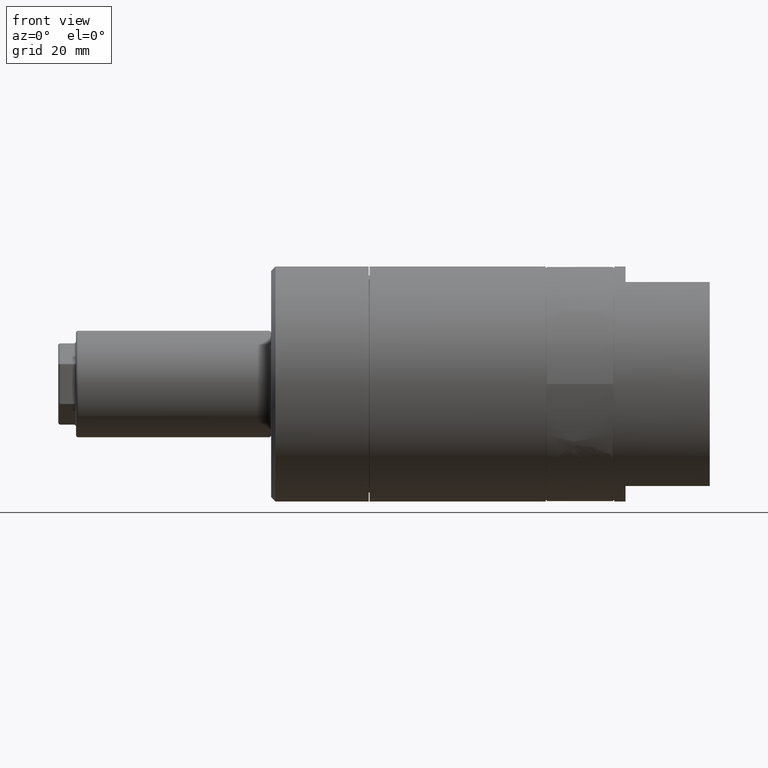
[diagram: clean part render]
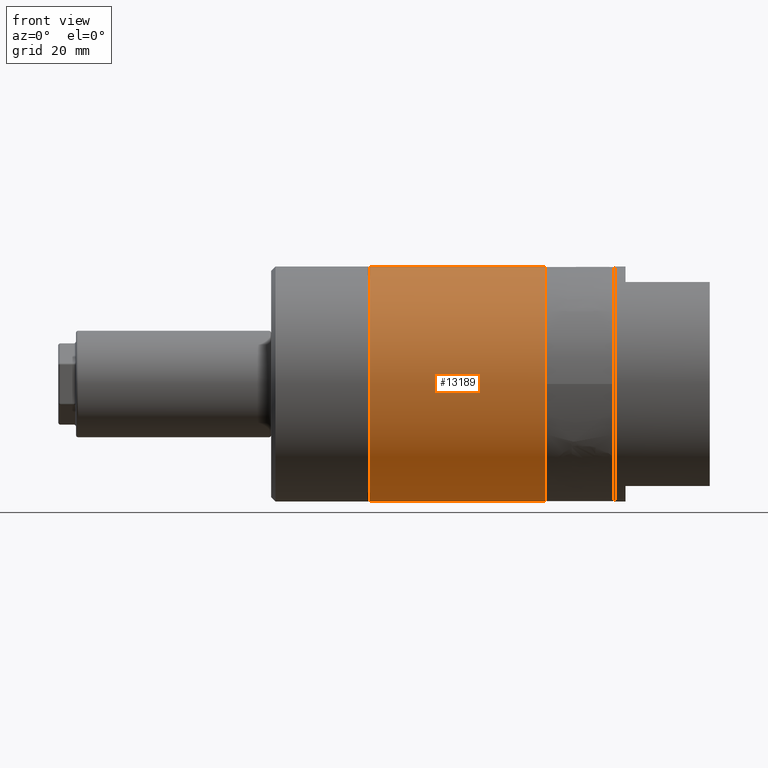
[diagram: same view with one face highlighted and labeled with its STEP entity id]
A machine part, front view. The second image highlights one B-rep face of the part: STEP entity #13189.
In plain terms, the highlighted cylindrical surface (partial cylindrical patch) has radius 26.5 mm, axis along (1, 0, 0).
Its self-contained STEP definition (entity closure, byte-faithful):
#1017 = AXIS2_PLACEMENT_3D ( 'NONE', #17498, #11054, #17573 ) ;
#1297 = CARTESIAN_POINT ( 'NONE',  ( 0.0000000000000000000, 0.0000000000000000000, 0.0000000000000000000 ) ) ;
#2271 = CARTESIAN_POINT ( 'NONE',  ( -76.70000000000000300, 0.0000000000000000000, 0.0000000000000000000 ) ) ;
#2949 = CIRCLE ( 'NONE', #1017, 26.50000000000000000 ) ;
#4433 = EDGE_CURVE ( 'NONE', #10887, #19399, #20723, .T. ) ;
#5019 = DIRECTION ( 'NONE',  ( 1.000000000000000000, 0.0000000000000000000, 0.0000000000000000000 ) ) ;
#5100 = CARTESIAN_POINT ( 'NONE',  ( -76.70000000000000300, 3.245314017740485800E-015, 26.50000000000000000 ) ) ;
#5479 = ORIENTED_EDGE ( 'NONE', *, *, #10195, .F. ) ;
#6317 = EDGE_CURVE ( 'NONE', #12280, #20383, #8217, .T. ) ;
#7550 = CYLINDRICAL_SURFACE ( 'NONE', #17084, 26.50000000000000000 ) ;
#7815 = DIRECTION ( 'NONE',  ( 1.000000000000000000, 0.0000000000000000000, 0.0000000000000000000 ) ) ;
#8217 = LINE ( 'NONE', #11610, #20913 ) ;
#9326 = DIRECTION ( 'NONE',  ( 0.0000000000000000000, 0.0000000000000000000, -1.000000000000000000 ) ) ;
#9467 = ORIENTED_EDGE ( 'NONE', *, *, #6317, .T. ) ;
#9640 = FACE_OUTER_BOUND ( 'NONE', #16787, .T. ) ;
#9802 = ORIENTED_EDGE ( 'NONE', *, *, #4433, .F. ) ;
#10195 = EDGE_CURVE ( 'NONE', #19399, #20383, #2949, .T. ) ;
#10326 = CARTESIAN_POINT ( 'NONE',  ( -37.00000000000000000, 0.0000000000000000000, -26.50000000000000000 ) ) ;
#10439 = DIRECTION ( 'NONE',  ( 1.000000000000000000, 0.0000000000000000000, 0.0000000000000000000 ) ) ;
#10449 = CARTESIAN_POINT ( 'NONE',  ( -76.70000000000000300, 0.0000000000000000000, -26.50000000000000000 ) ) ;
#10887 = VERTEX_POINT ( 'NONE', #5100 ) ;
#11054 = DIRECTION ( 'NONE',  ( 1.000000000000000000, 0.0000000000000000000, 0.0000000000000000000 ) ) ;
#11610 = CARTESIAN_POINT ( 'NONE',  ( 0.0000000000000000000, 0.0000000000000000000, -26.50000000000000000 ) ) ;
#11972 = DIRECTION ( 'NONE',  ( 0.0000000000000000000, 0.0000000000000000000, -1.000000000000000000 ) ) ;
#12280 = VERTEX_POINT ( 'NONE', #10449 ) ;
#13153 = CARTESIAN_POINT ( 'NONE',  ( -37.00000000000000000, 3.245314017740485800E-015, 26.50000000000000000 ) ) ;
#13189 = ADVANCED_FACE ( 'NONE', ( #9640 ), #7550, .T. ) ;
#13721 = VECTOR ( 'NONE', #7815, 1000.000000000000000 ) ;
#13963 = AXIS2_PLACEMENT_3D ( 'NONE', #2271, #10439, #11972 ) ;
#14604 = DIRECTION ( 'NONE',  ( 1.000000000000000000, 0.0000000000000000000, 0.0000000000000000000 ) ) ;
#15793 = ORIENTED_EDGE ( 'NONE', *, *, #19602, .T. ) ;
#16787 = EDGE_LOOP ( 'NONE', ( #9802, #15793, #9467, #5479 ) ) ;
#17084 = AXIS2_PLACEMENT_3D ( 'NONE', #1297, #14604, #9326 ) ;
#17498 = CARTESIAN_POINT ( 'NONE',  ( -37.00000000000000000, 0.0000000000000000000, 0.0000000000000000000 ) ) ;
#17573 = DIRECTION ( 'NONE',  ( 0.0000000000000000000, 0.0000000000000000000, -1.000000000000000000 ) ) ;
#19399 = VERTEX_POINT ( 'NONE', #13153 ) ;
#19602 = EDGE_CURVE ( 'NONE', #10887, #12280, #20607, .T. ) ;
#20383 = VERTEX_POINT ( 'NONE', #10326 ) ;
#20607 = CIRCLE ( 'NONE', #13963, 26.50000000000000000 ) ;
#20667 = CARTESIAN_POINT ( 'NONE',  ( 0.0000000000000000000, 3.245314017740485800E-015, 26.50000000000000000 ) ) ;
#20723 = LINE ( 'NONE', #20667, #13721 ) ;
#20913 = VECTOR ( 'NONE', #5019, 1000.000000000000000 ) ;